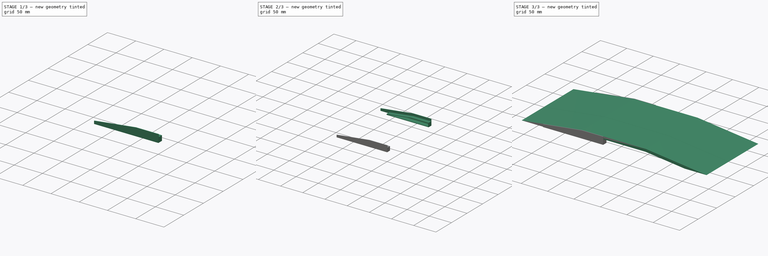
[diagram: build sequence overview — one tinted view per stage of 3, left to right]
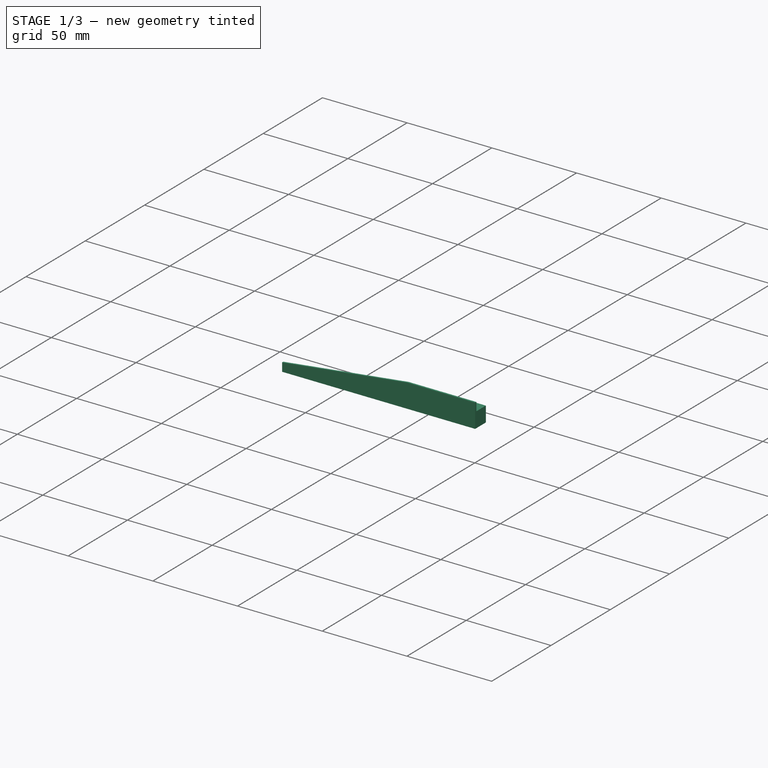
[diagram: stage 1 of 3 — iso view after this stage's code; geometry added in this stage tinted green]
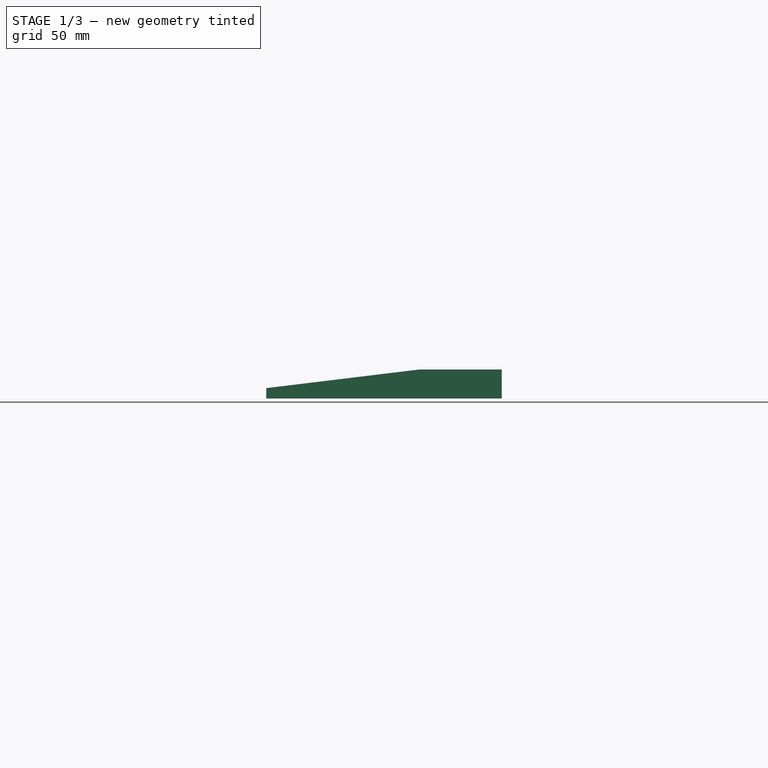
[diagram: stage 1 of 3 — front view after this stage's code; geometry added in this stage tinted green]
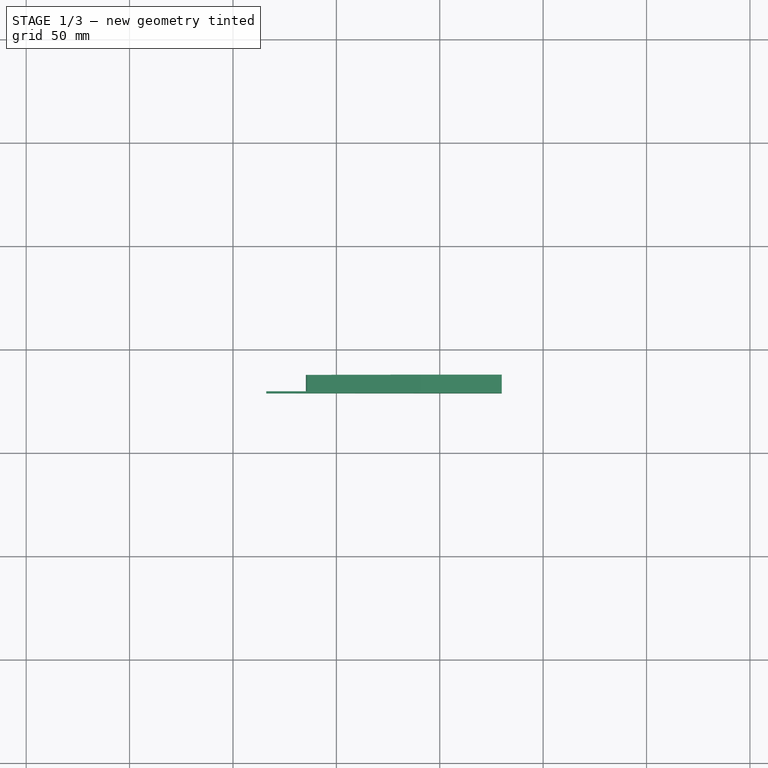
[diagram: stage 1 of 3 — top view after this stage's code; geometry added in this stage tinted green]
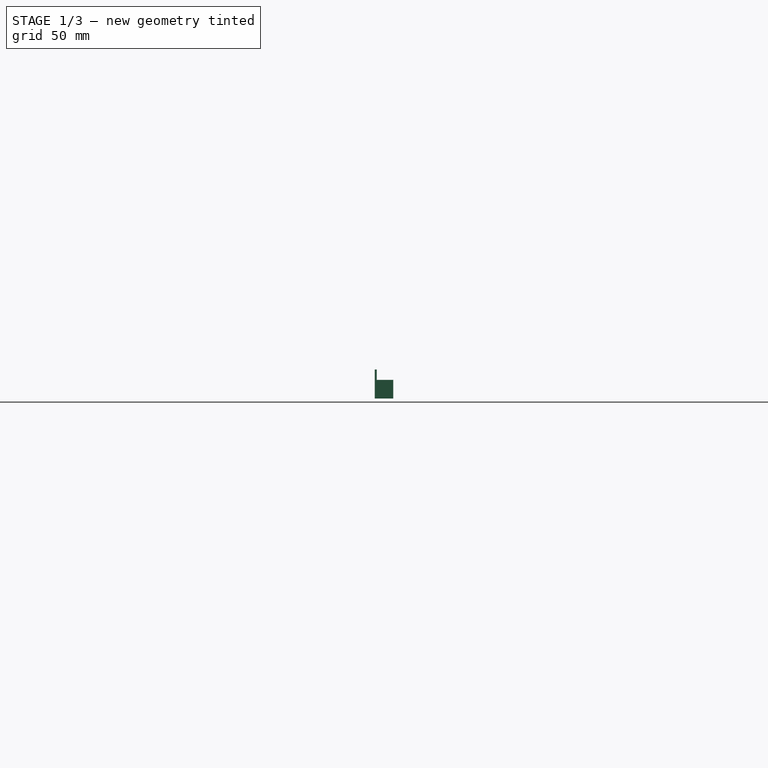
[diagram: stage 1 of 3 — right view after this stage's code; geometry added in this stage tinted green]
FCSTD DOCUMENT  (FreeCAD 0.21R33771 (Git))
Label: EEI-speed-bump
License: Creative Commons Attribution-NonCommercial-ShareAlike 4.0
LicenseURL: https://creativecommons.org/licenses/by-nc-sa/4.0/
objects: Part::Mirroring×3, Sketcher::SketchObject×2, PartDesign::Pad×2, PartDesign::Body×1, Spreadsheet::Sheet×1, Part::Feature×1
note: 11 computed .brp shape members not serialized (recipe doc carries the construction recipe); baked Part::Feature solids carry a one-line shape summary decoded from their .brp

FEATURE [PartDesign::Body] Body  label="Body-speed-bump"
  Group = -> [Sketch,Pad,Sketch001,Pad001]
  Origin = -> Origin
  Tip = -> Pad001
FEATURE [Spreadsheet::Sheet] Spreadsheet  label="Config"
  cells = A1='Configuración; A2='Pendiente (%); B2(slope)=10; C2='angle = asin(<<Config>>.slope / sqrt(<<Config>>.slope ^ 2 + 100 ^ 2)); A3='Altura:; B3(height)==1.4 cm; A4='Anchura:; B4(width)==14 cm; A5='Longitud total:; B5(lengthtotal)==35 cm; A6='Longitud llano:; B6(lengthplane)==12 cm
FEATURE [Part::Feature] Body001  label="ramp-support"
  Placement = pos=(60,71.1,1.16e-14) rot=(1,0,0;1.5708rad)
  shape: bbox 113.9 x 9 x 14 mm, 20 faces (baked)
FEATURE [Part::Mirroring] Part__Mirroring  label="ramp-support (Mirror #1)"
  Base = (0,0,0)
  Normal = (0,1,0)
  Source = -> Body001
FEATURE [Part::Mirroring] Part__Mirroring002  label="ramp-support (Mirror #3)"
  Base = (0,0,0)
  Normal = (1,0,0)
  Source = -> Part__Mirroring
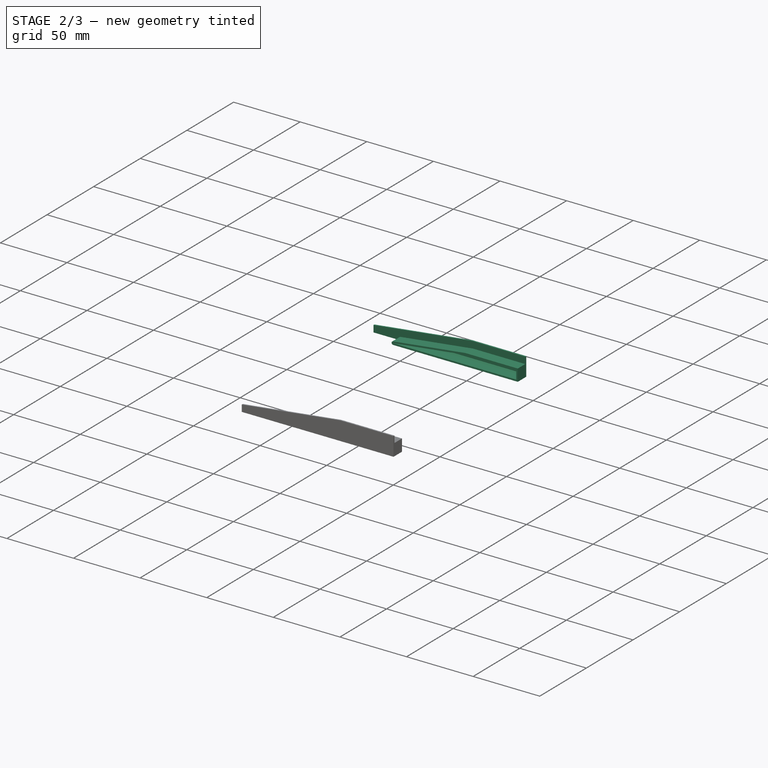
[diagram: stage 2 of 3 — iso view after this stage's code; geometry added in this stage tinted green]
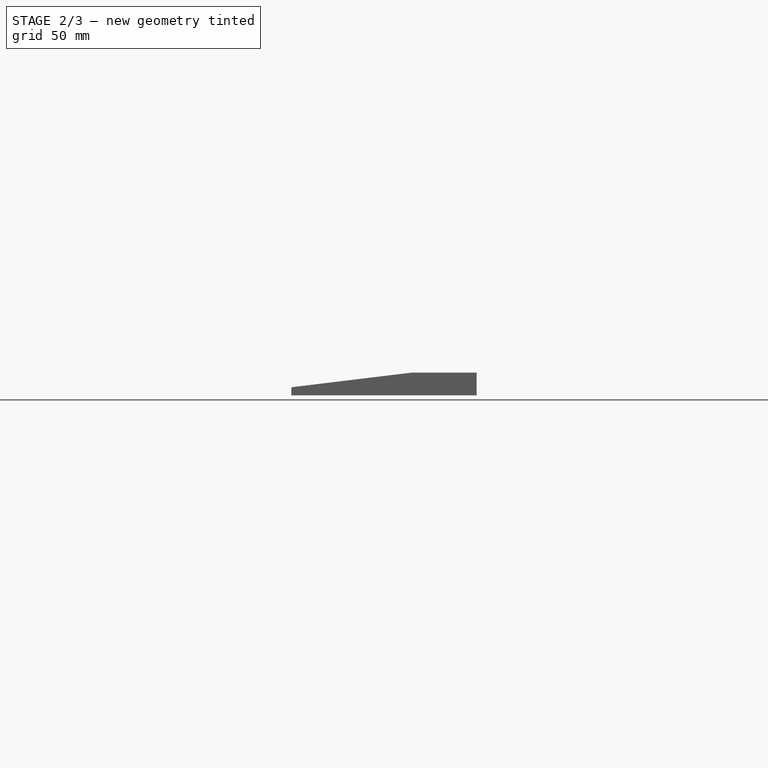
[diagram: stage 2 of 3 — front view after this stage's code; geometry added in this stage tinted green]
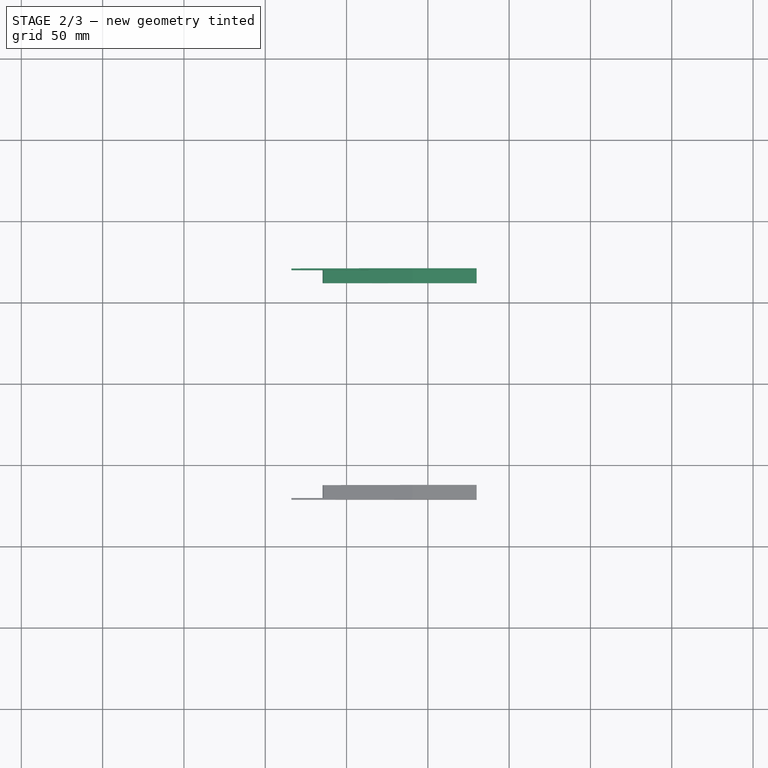
[diagram: stage 2 of 3 — top view after this stage's code; geometry added in this stage tinted green]
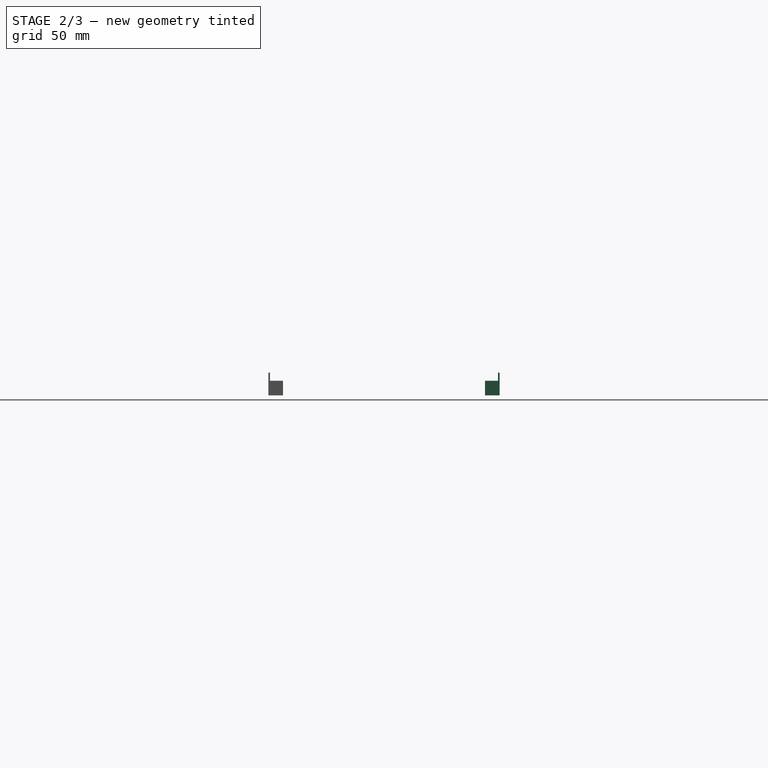
[diagram: stage 2 of 3 — right view after this stage's code; geometry added in this stage tinted green]
FEATURE [Part::Mirroring] Part__Mirroring001  label="ramp-support (Mirror #2)"
  Base = (0,0,0)
  Normal = (1,0,0)
  Source = -> Body001
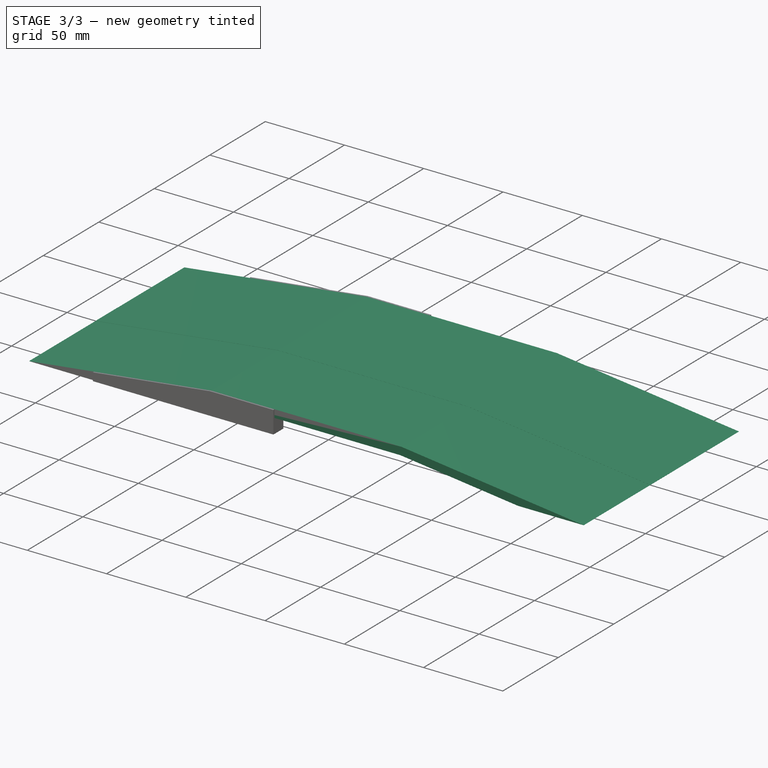
[diagram: stage 3 of 3 — iso view after this stage's code; geometry added in this stage tinted green]
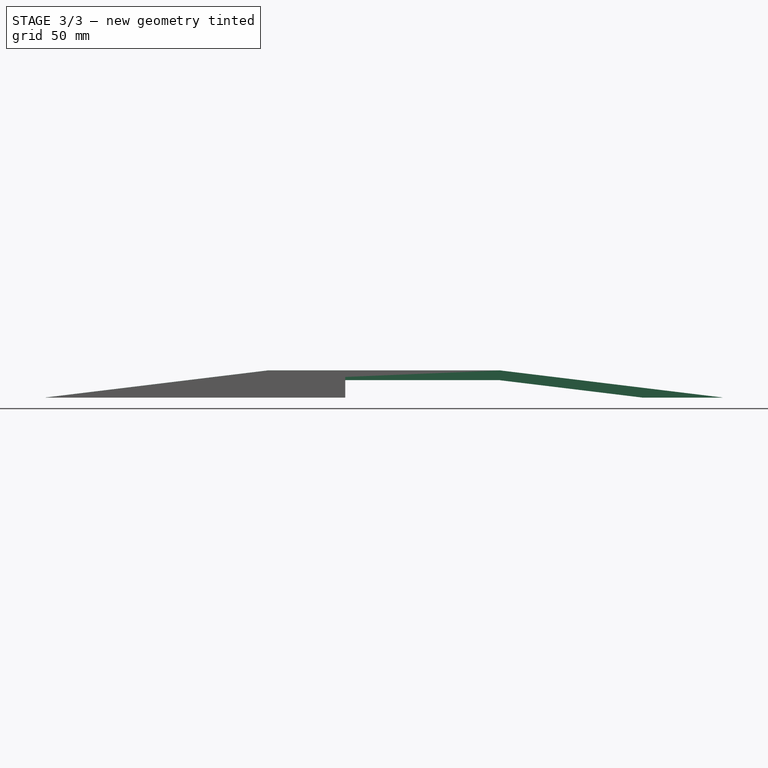
[diagram: stage 3 of 3 — front view after this stage's code; geometry added in this stage tinted green]
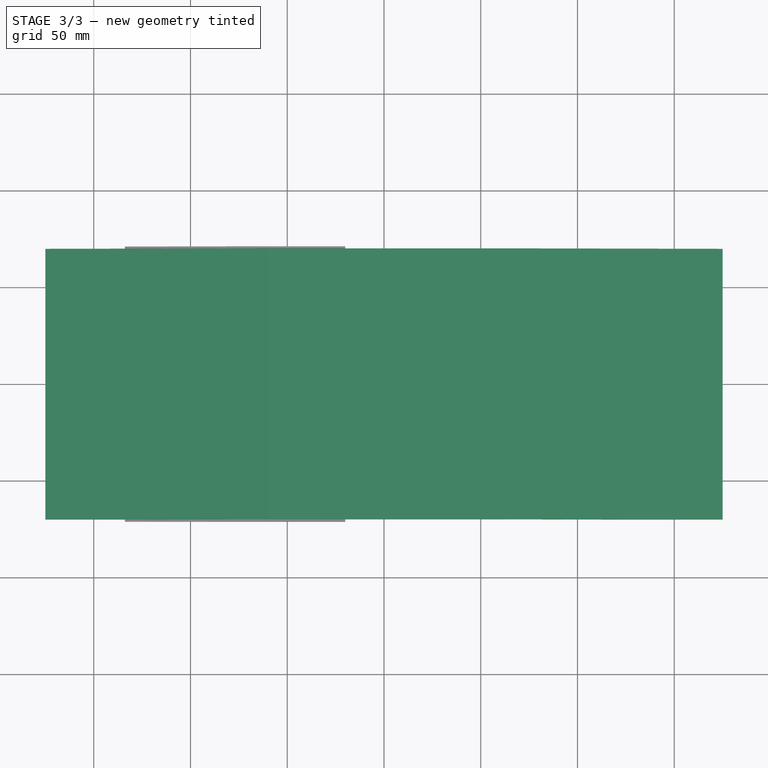
[diagram: stage 3 of 3 — top view after this stage's code; geometry added in this stage tinted green]
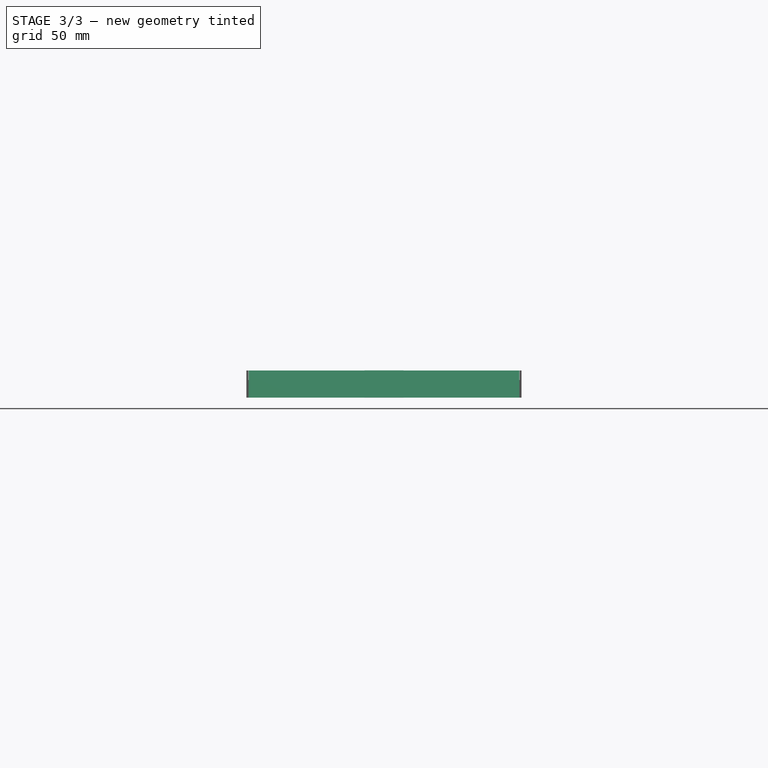
[diagram: stage 3 of 3 — right view after this stage's code; geometry added in this stage tinted green]
FEATURE [Sketcher::SketchObject] Sketch  label="Sketch-profile-speed-bump"
  FullyConstrained = true
  MapMode = 5
  Placement = pos=(0,0,0) rot=(1,0,0;1.5708rad)
  Support = -> [XZ_Plane]
  expr: Constraints[7] = <<Config>>.lengthtotal
  expr: Constraints[8] = <<Config>>.lengthplane
  expr: Constraints[9] = <<Config>>.height
  sketch-geometry (11):
    g0: LineSegment StartX=-175 StartY=0 StartZ=0 EndX=-60 EndY=14 EndZ=0
    g1: LineSegment StartX=-60 StartY=14 StartZ=0 EndX=60 EndY=14 EndZ=0
    g2: LineSegment StartX=60 StartY=14 StartZ=0 EndX=175 EndY=7e-16 EndZ=0
    g3: LineSegment StartX=175 StartY=0 StartZ=0 EndX=-175 EndY=0 EndZ=0
    g4: LineSegment StartX=-175 StartY=0 StartZ=0 EndX=-133.625 EndY=0 EndZ=0
    g5: LineSegment StartX=-133.625 StartY=0 StartZ=0 EndX=-59.3958 EndY=9.03664 EndZ=0
    g6: LineSegment StartX=-59.3958 StartY=9.03664 StartZ=0 EndX=59.3958 EndY=9.03664 EndZ=0
    g7: LineSegment StartX=59.3958 StartY=9.03664 StartZ=0 EndX=133.625 EndY=-1.7e-15 EndZ=0
    g8: LineSegment StartX=133.625 StartY=-1.7e-15 StartZ=0 EndX=175 EndY=0 EndZ=0
    g9: LineSegment StartX=60 StartY=14 StartZ=0 EndX=59.3958 EndY=9.03664 EndZ=0
    g10: LineSegment StartX=-59.3958 StartY=9.03664 StartZ=0 EndX=-60 EndY=14 EndZ=0
  constraints (28):
    c: PointOnObject(g0,g-1)
    c: Coincident(g0,g1)
    c: Coincident(g1,g2)
    c: Coincident(g2,g3)
    c: Coincident(g3,g0)
    c: Symmetric(g0,g1,g-2)
    c: Symmetric(g0,g2,g-2)
    c: DistanceX(g3,g3) = 350
    c: DistanceX(g1,g1) = 120
    c: DistanceY(g0) = 14
    c: Coincident(g0,g4)
    c: PointOnObject(g4,g3)
    c: Coincident(g4,g5)
    c: Coincident(g5,g6)
    c: Horizontal(g6)
    c: Coincident(g6,g7)
    c: PointOnObject(g7,g3)
    c: Coincident(g7,g8)
    c: Coincident(g8,g2)
    c: Coincident(g9,g1)
    c: Coincident(g9,g6)
    c: Perpendicular(g2,g9)
    c: Parallel(g7,g2)
    c: Parallel(g5,g0)
    c: Coincident(g10,g5)
    c: Coincident(g10,g0)
    c: Perpendicular(g0,g10)
    c: Distance(g10) = 5
FEATURE [PartDesign::Pad] Pad  label="Pad-speed-bump"
  Direction = (0,-1,-2e-16)
  Length = 140
  Length2 = 10
  Midplane = true
  Placement = pos=(0,0,0) rot=(1,0,0;1.5708rad)
  Profile = -> Sketch
  ReferenceAxis = -> Sketch [N_Axis]
  Type = 0
  expr: Length = <<Config>>.width
FEATURE [Sketcher::SketchObject] Sketch001  label="Sketch-profile-line"
  ExternalGeometry = -> [Pad]
  FullyConstrained = true
  MapMode = 5
  Placement = pos=(0,0,0) rot=(1,0,0;1.5708rad)
  Support = -> [XZ_Plane]
  sketch-geometry (10):
    g0: LineSegment StartX=-175 StartY=7e-16 StartZ=0 EndX=-60 EndY=14 EndZ=0
    g1: LineSegment StartX=-60 StartY=14 StartZ=0 EndX=60 EndY=14 EndZ=0
    g2: LineSegment StartX=60 StartY=14 StartZ=0 EndX=175 EndY=7e-16 EndZ=0
    g3: LineSegment StartX=-175 StartY=7e-16 StartZ=0 EndX=-175 EndY=0.05 EndZ=0
    g4: LineSegment StartX=-175 StartY=0.05 StartZ=0 EndX=-60.006 EndY=14.0493 EndZ=0
    g5: LineSegment StartX=-60 StartY=14.0496 StartZ=0 EndX=60 EndY=14.0496 EndZ=0
    g6: LineSegment StartX=60.006 StartY=14.0493 StartZ=0 EndX=175 EndY=0.05 EndZ=0
    g7: LineSegment StartX=175 StartY=0.05 StartZ=0 EndX=175 EndY=7e-16 EndZ=0
    g8: ArcOfCircle CenterX=-60 CenterY=14 CenterZ=0 NormalX=0 NormalY=0 NormalZ=1 AngleXU=0 Radius=0.0496336 StartAngle=1.5708 EndAngle=1.69194
    g9: ArcOfCircle CenterX=60 CenterY=14 CenterZ=0 NormalX=0 NormalY=0 NormalZ=1 AngleXU=0 Radius=0.0496336 StartAngle=1.44965 EndAngle=1.5708
  constraints (22):
    c: Coincident(g1,g2)
    c: Symmetric(g0,g2,g-2)
    c: Coincident(g0,g3)
    c: Vertical(g3)
    c: Coincident(g3,g4)
    c: Horizontal(g5)
    c: Coincident(g6,g7)
    c: Coincident(g7,g2)
    c: Vertical(g7)
    c: Parallel(g2,g6)
    c: Parallel(g0,g4)
    c: DistanceY(g3,g3) = 0.05
    c: Tangent(g4,g8) = 1.5708
    c: Tangent(g5,g8) = 1.5708
    c: Coincident(g8,g0)
    c: Tangent(g5,g9) = 1.5708
    c: Tangent(g6,g9) = 1.5708
    c: Coincident(g9,g1)
    c: Coincident(g0,g1)
    c: Coincident(g2,g-4)
    c: Coincident(g1,g-4)
    c: Coincident(g0,g-3)
FEATURE [PartDesign::Pad] Pad001  label="Pad-line"
  BaseFeature = -> Pad
  Direction = (0,-1,-2e-16)
  Length = 20
  Length2 = 10
  Midplane = true
  Placement = pos=(0,0,0) rot=(1,0,0;1.5708rad)
  Profile = -> Sketch001
  ReferenceAxis = -> Sketch001 [N_Axis]
  Type = 0
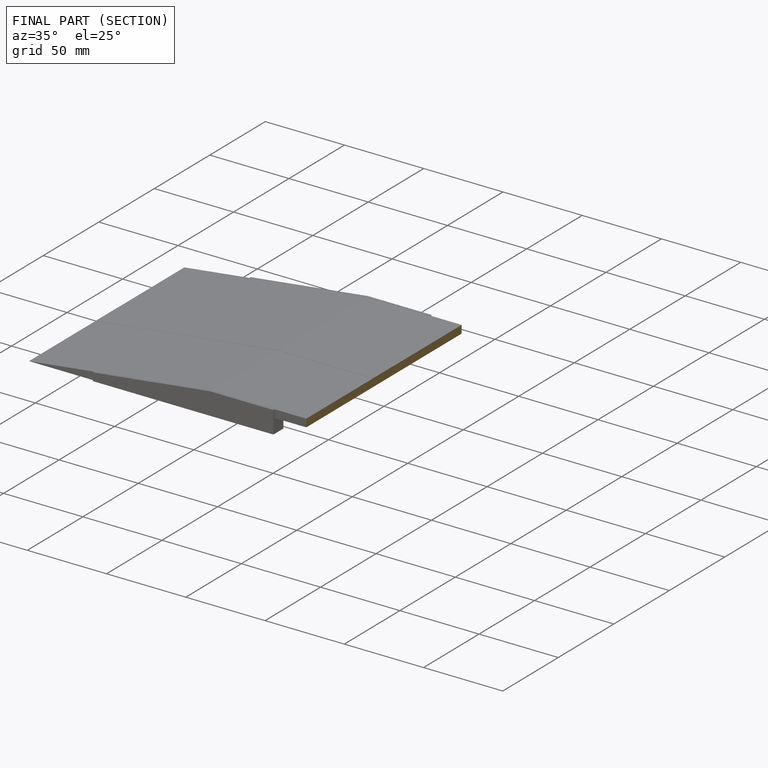
[diagram: finished part — half-section view (interior)]
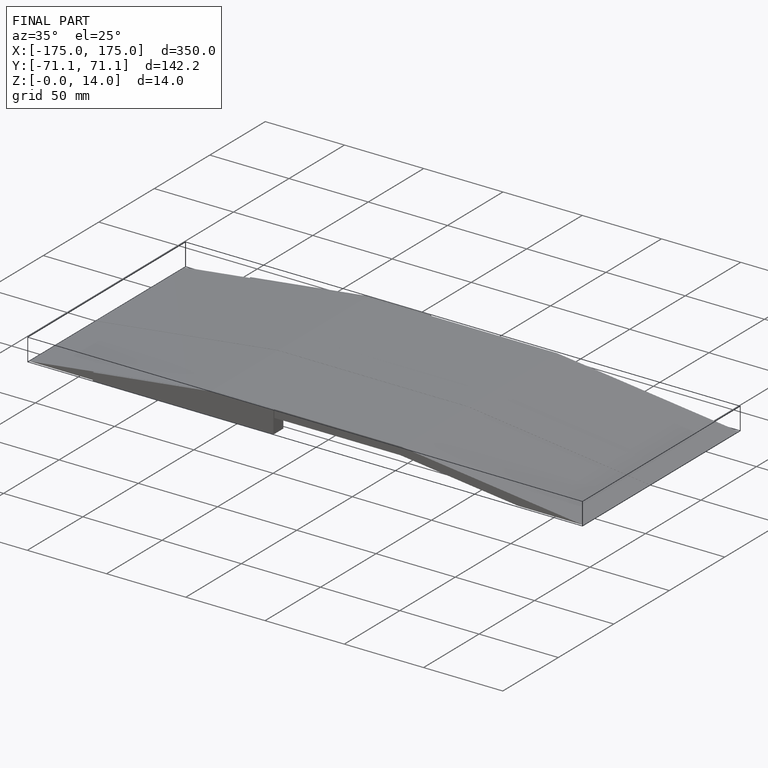
[diagram: finished part — iso view with bounding-box wireframe]
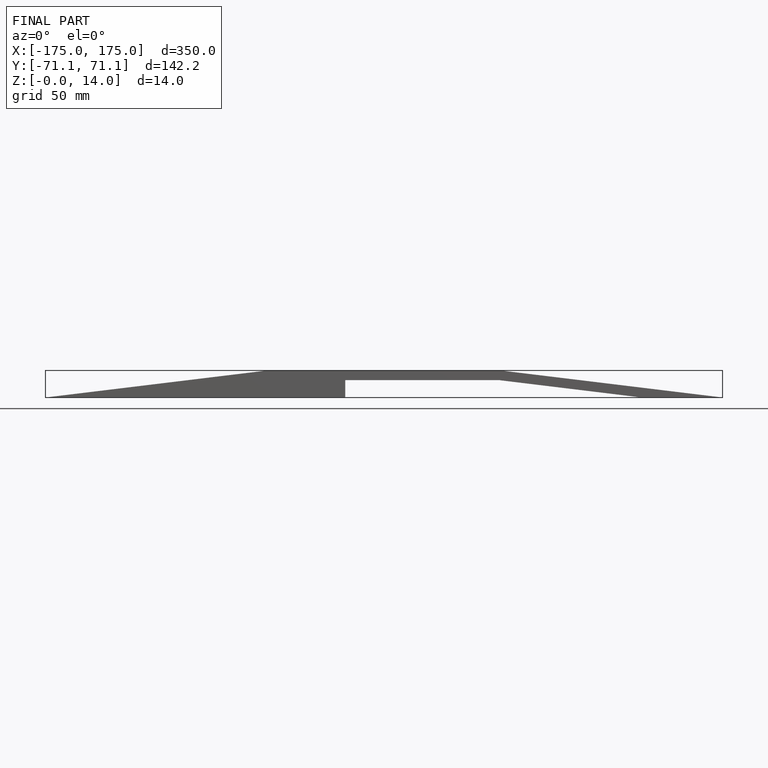
[diagram: finished part — front view with bounding-box wireframe]
